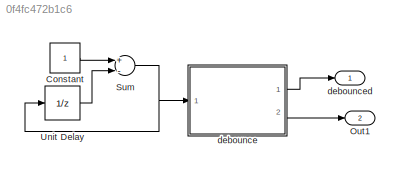
MODEL slx_0f4fc472b1c6
KIND model
CONFIG AbsTol = auto
CONFIG EnableMultiTasking = on
CONFIG FixedStep = auto
CONFIG MaxStep = auto
CONFIG MinStep = auto
CONFIG RelTol = 1e-3
CONFIG SampleTimeConstraint = Unconstrained
CONFIG Solver = FixedStepDiscrete
CONFIG SolverName = FixedStepDiscrete
CONFIG StartTime = 0.0
CONFIG StopTime = 10.0
WORKSPACE source: MAT-file member
WORKSPACE already_pp = 1
BLOCK [Constant] Constant
  OutDataTypeStr = uint8
BLOCK [Outport] Out1
  IconDisplay = Port number
  Port = 2
BLOCK [Sum] Sum
  InputSameDT = off
  Inputs = +-
  OutDataTypeStr = double
  Ports = [2, 1]
  SaturateOnIntegerOverflow = off
BLOCK [UnitDelay] Unit Delay
  InitialCondition = uint8(0)
  InputProcessing = Elements as channels (sample based)
  SampleTime = -1
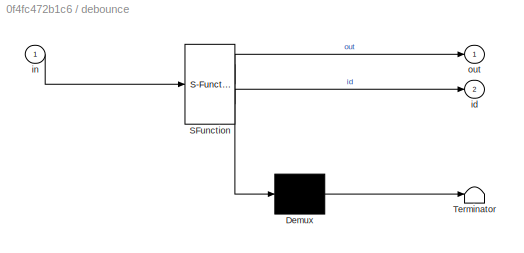
BLOCK [SubSystem] debounce
  ErrorFcn = Stateflow.Translate.translate
  PermitHierarchicalResolution = ExplicitOnly
  Ports = [1, 2]
  RequestExecContextInheritance = off
  SFBlockType = Chart
  TreatAsAtomicUnit = on
  Variant = off
BLOCK [Demux] debounce/ Demux 
  Outputs = 1
  Ports = [1, 1]
BLOCK [S-Function] debounce/ SFunction 
  EnableBusSupport = on
  FunctionName = sf_sfun
  PortCounts = [1 3]
  Ports = [1, 3]
  SFcnIsStateOwnerBlock = off
  SFunctionDeploymentMode = off
  Tag = Stateflow S-Function debounce_PP 1
BLOCK [Terminator] debounce/ Terminator 
BLOCK [Outport] debounce/id
  IconDisplay = Port number
  Port = 2
BLOCK [Inport] debounce/in
  IconDisplay = Port number
  OutDataTypeStr = double
  PortDimensions = 1
BLOCK [Outport] debounce/out
  IconDisplay = Port number
BLOCK [Outport] debounced
  IconDisplay = Port number
  OutDataTypeStr = double
LINE Constant:1 -> Sum:1
NET Sum:1 -> Unit Delay:1, debounce:1
LINE Unit Delay:1 -> Sum:2
LINE debounce:1 -> debounced:1
LINE debounce:2 -> Out1:1
note: NET lines group one-source signal fan-out (src -> all destinations, sorted); 1:1 wires keep LINE
CHART debounce states=6 transitions=7
  STATE_LABEL 'To'
  STATE_LABEL 'To_on\nen: id = 2;\nexit: id = 0;'
  STATE_LABEL 'To_off\nen: id = 3;\nexit: id = 0;'
  STATE_LABEL 'To_on\nen: id = 2;\nexit: id = 0;'
  STATE_LABEL 'To_off\nen: id = 3;\nexit: id = 0;'
  STATE_LABEL 'Off\nen: out = 0 ;\nid = 1;\nexit: id = 0;'
  STATE_LABEL 'OnParent'
  STATE_LABEL 'On\nen: out = 1; id = 4;\nexit: id = 0;'
  STATE_LABEL 'On\nen: out = 1; id = 4;\nexit: id = 0;'
